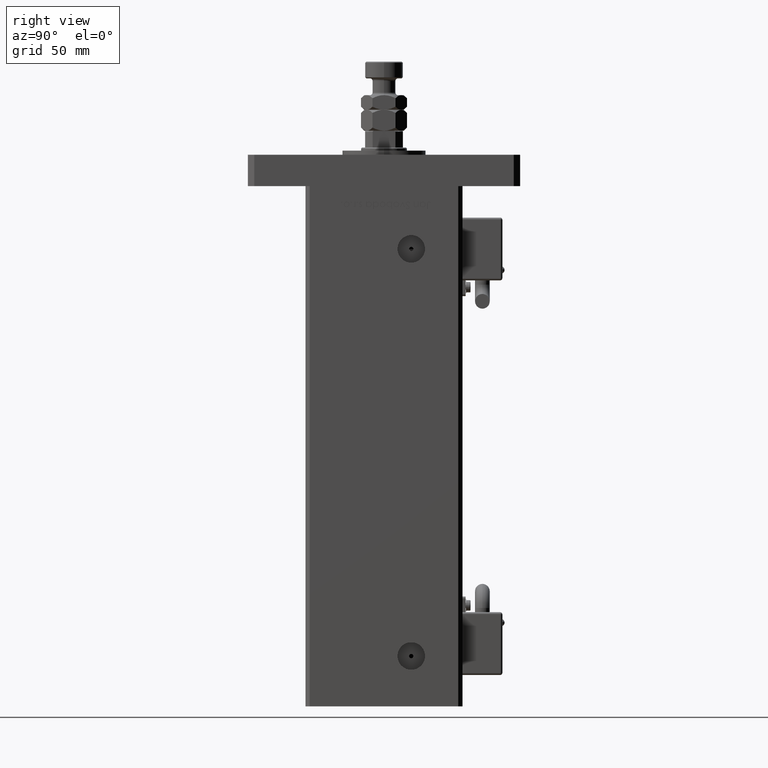
[diagram: clean part render]
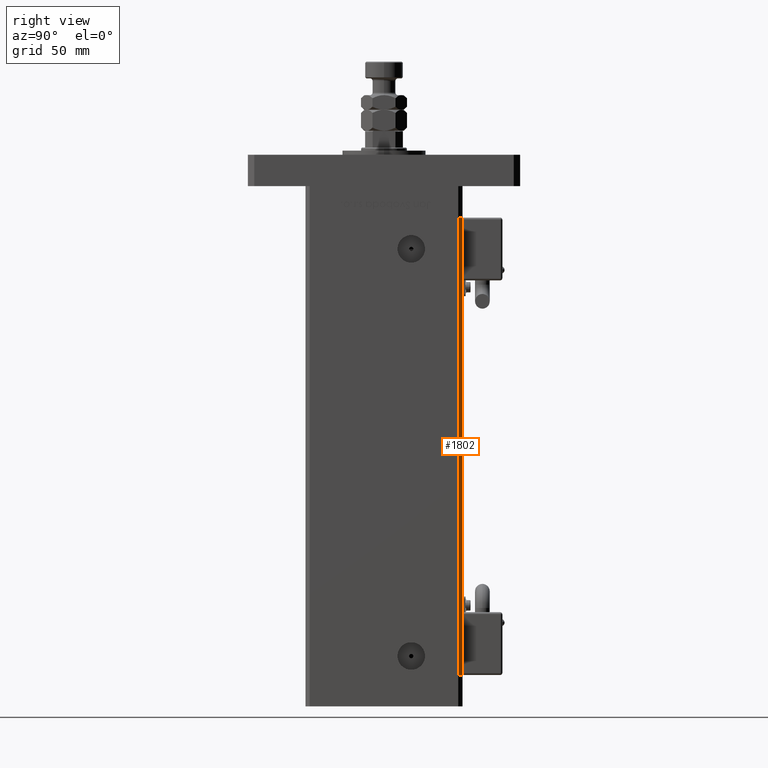
[diagram: same view with one face highlighted and labeled with its STEP entity id]
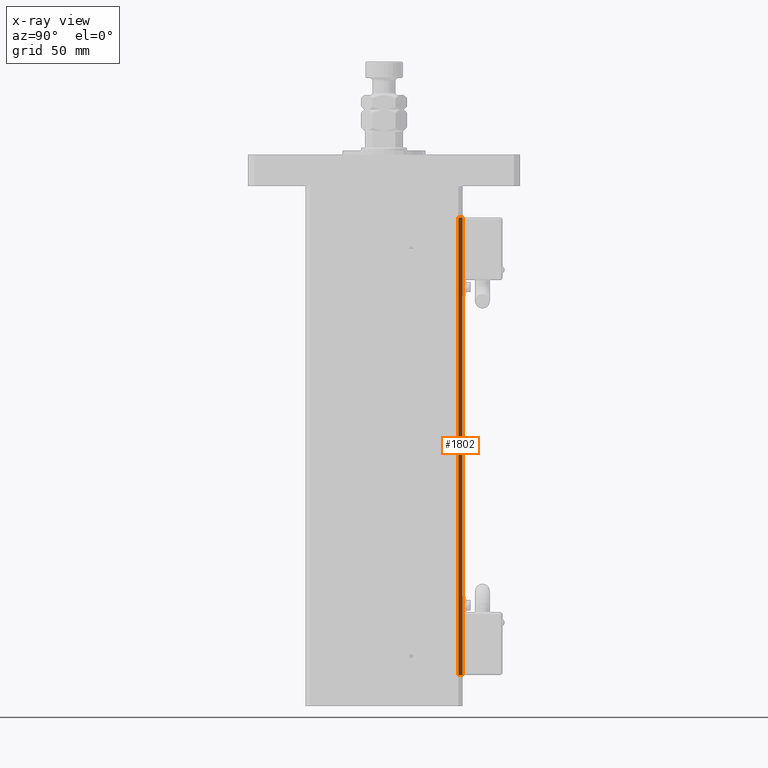
[diagram: x-ray of the same camera — body ghosted, the highlighted face saturated]
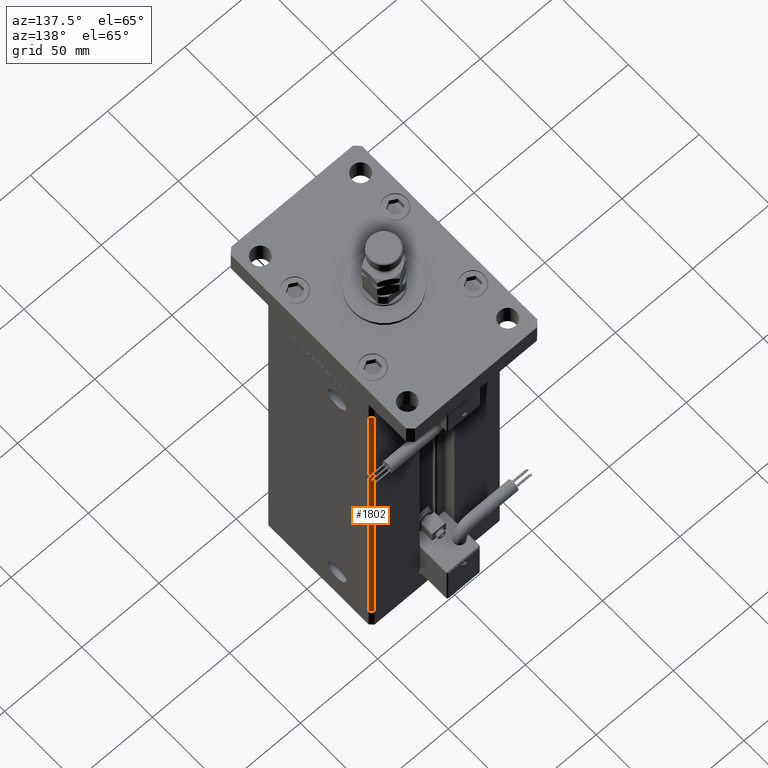
[diagram: same view with one face highlighted and labeled with its STEP entity id]
A machine part, right view. The second image highlights one B-rep face of the part: STEP entity #1802.
The next image is the same camera in x-ray: the body ghosted, the highlighted face saturated — about 0% of this face is hidden behind the body in this view.
A second angle (auxiliary view) of the same face is appended — the face is thin or edge-on in the first view.
In plain terms, the highlighted planar face has unit normal (0.7071, 0.7071, 0).
Its self-contained STEP definition (entity closure, byte-faithful):
#1802 = ADVANCED_FACE ( 'NONE', ( #47401 ), #57124, .T. ) ;
#1862 = EDGE_CURVE ( 'NONE', #14549, #21424, #2630, .T. ) ;
#2630 = LINE ( 'NONE', #35016, #48875 ) ;
#3782 = ORIENTED_EDGE ( 'NONE', *, *, #43485, .F. ) ;
#4416 = LINE ( 'NONE', #22376, #37792 ) ;
#4917 = DIRECTION ( 'NONE',  ( -0.000000000000000000, -0.000000000000000000, -1.000000000000000000 ) ) ;
#5199 = CARTESIAN_POINT ( 'NONE',  ( 40.50000000000000000, 37.50000000000000711, 218.5000000000000000 ) ) ;
#5912 = VERTEX_POINT ( 'NONE', #29924 ) ;
#6582 = CARTESIAN_POINT ( 'NONE',  ( 40.50000000000000000, 37.50000000000000711, 218.5000000000000000 ) ) ;
#11474 = DIRECTION ( 'NONE',  ( -0.7071067811865500152, 0.7071067811865450192, 0.000000000000000000 ) ) ;
#12986 = DIRECTION ( 'NONE',  ( 0.7071067811865500152, -0.7071067811865451302, 0.000000000000000000 ) ) ;
#14549 = VERTEX_POINT ( 'NONE', #6582 ) ;
#16895 = VECTOR ( 'NONE', #12986, 1000.000000000000114 ) ;
#20598 = DIRECTION ( 'NONE',  ( 0.7071067811865500152, -0.7071067811865451302, 0.000000000000000000 ) ) ;
#21424 = VERTEX_POINT ( 'NONE', #57533 ) ;
#22376 = CARTESIAN_POINT ( 'NONE',  ( 42.50000000000000711, 35.50000000000001421, 218.5000000000000000 ) ) ;
#24377 = AXIS2_PLACEMENT_3D ( 'NONE', #47113, #52706, #11474 ) ;
#25324 = VERTEX_POINT ( 'NONE', #54725 ) ;
#29123 = ORIENTED_EDGE ( 'NONE', *, *, #1862, .T. ) ;
#29924 = CARTESIAN_POINT ( 'NONE',  ( 42.50000000000000711, 35.50000000000001421, 0.000000000000000000 ) ) ;
#30307 = EDGE_CURVE ( 'NONE', #25324, #5912, #43902, .T. ) ;
#35016 = CARTESIAN_POINT ( 'NONE',  ( 40.50000000000000000, 37.50000000000000711, 218.5000000000000000 ) ) ;
#36249 = EDGE_CURVE ( 'NONE', #21424, #5912, #4416, .T. ) ;
#36322 = VECTOR ( 'NONE', #4917, 1000.000000000000000 ) ;
#37792 = VECTOR ( 'NONE', #49475, 1000.000000000000000 ) ;
#43485 = EDGE_CURVE ( 'NONE', #14549, #25324, #53257, .T. ) ;
#43902 = LINE ( 'NONE', #57773, #16895 ) ;
#44163 = EDGE_LOOP ( 'NONE', ( #48101, #3782, #29123, #51133 ) ) ;
#47113 = CARTESIAN_POINT ( 'NONE',  ( 40.50000000000000000, 37.50000000000000711, 218.5000000000000000 ) ) ;
#47401 = FACE_OUTER_BOUND ( 'NONE', #44163, .T. ) ;
#48101 = ORIENTED_EDGE ( 'NONE', *, *, #30307, .F. ) ;
#48875 = VECTOR ( 'NONE', #20598, 1000.000000000000114 ) ;
#49475 = DIRECTION ( 'NONE',  ( -0.000000000000000000, -0.000000000000000000, -1.000000000000000000 ) ) ;
#51133 = ORIENTED_EDGE ( 'NONE', *, *, #36249, .T. ) ;
#52706 = DIRECTION ( 'NONE',  ( 0.7071067811865450192, 0.7071067811865500152, -0.000000000000000000 ) ) ;
#53257 = LINE ( 'NONE', #5199, #36322 ) ;
#54725 = CARTESIAN_POINT ( 'NONE',  ( 40.50000000000000000, 37.50000000000000711, 0.000000000000000000 ) ) ;
#57124 = PLANE ( 'NONE',  #24377 ) ;
#57533 = CARTESIAN_POINT ( 'NONE',  ( 42.50000000000000711, 35.50000000000001421, 218.5000000000000000 ) ) ;
#57773 = CARTESIAN_POINT ( 'NONE',  ( 40.50000000000000000, 37.50000000000000711, 0.000000000000000000 ) ) ;